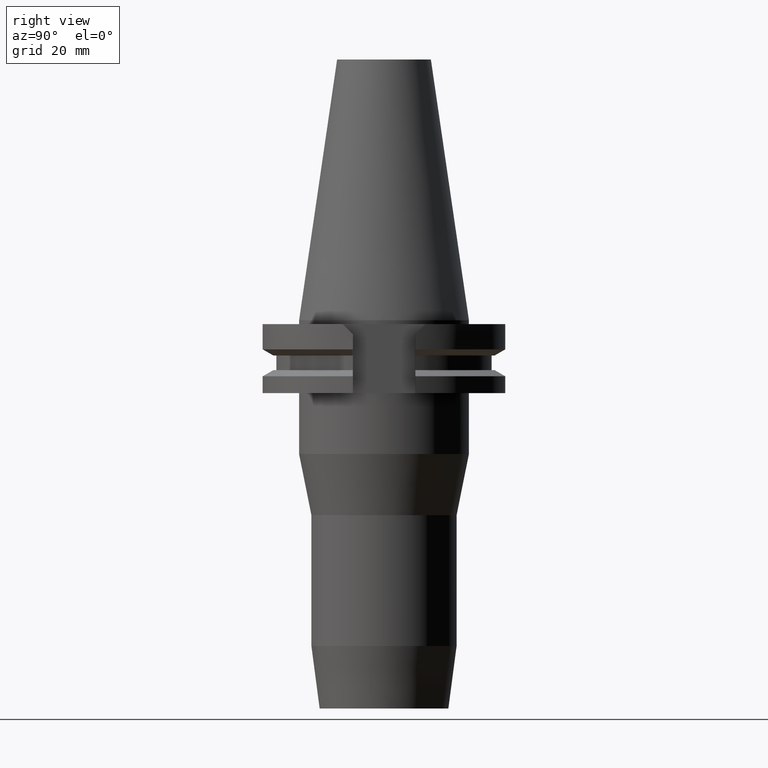
[diagram: clean part render]
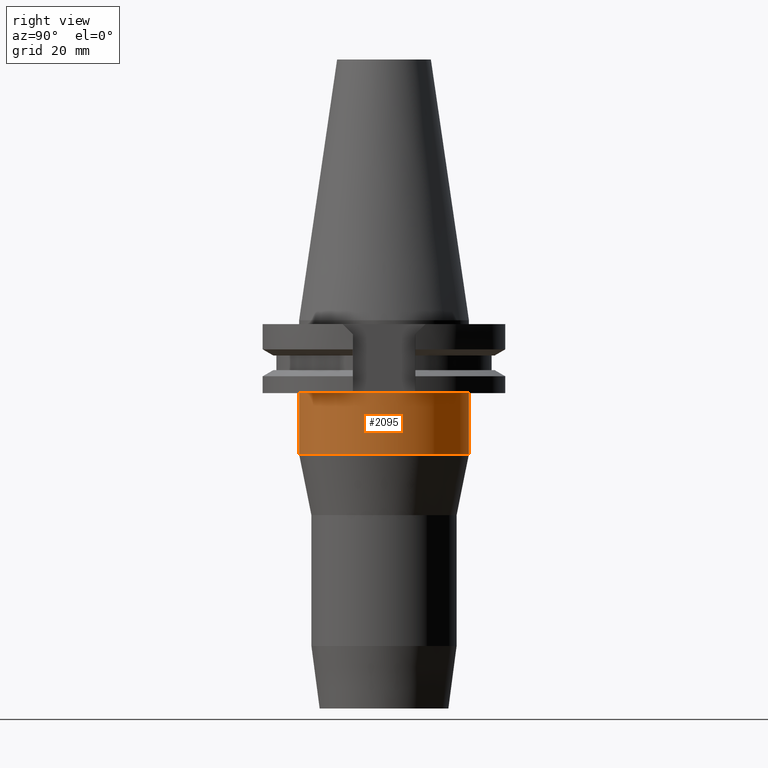
[diagram: same view with one face highlighted and labeled with its STEP entity id]
A machine part, right view. The second image highlights one B-rep face of the part: STEP entity #2095.
In plain terms, the highlighted cylindrical surface (partial cylindrical patch) has radius 22.225 mm, axis along (0, 0, -1).
Its self-contained STEP definition (entity closure, byte-faithful):
#259=CARTESIAN_POINT('',(0.E0,2.164471368983E-14,-1.905E1));
#260=DIRECTION('',(0.E0,0.E0,-1.E0));
#261=DIRECTION('',(0.E0,1.E0,0.E0));
#262=AXIS2_PLACEMENT_3D('',#259,#260,#261);
#848=DIRECTION('',(0.E0,0.E0,-1.E0));
#849=VECTOR('',#848,1.595E1);
#850=CARTESIAN_POINT('',(0.E0,-2.2225E1,-1.905E1));
#851=LINE('',#850,#849);
#855=DIRECTION('',(0.E0,0.E0,-1.E0));
#856=VECTOR('',#855,1.595E1);
#857=CARTESIAN_POINT('',(0.E0,2.2225E1,-1.905E1));
#858=LINE('',#857,#856);
#877=CARTESIAN_POINT('',(0.E0,0.E0,-3.5E1));
#878=DIRECTION('',(0.E0,0.E0,1.E0));
#879=DIRECTION('',(0.E0,-1.E0,0.E0));
#880=AXIS2_PLACEMENT_3D('',#877,#878,#879);
#1326=CARTESIAN_POINT('',(0.E0,2.2225E1,-3.5E1));
#1327=VERTEX_POINT('',#1326);
#1328=CARTESIAN_POINT('',(0.E0,-2.2225E1,-3.5E1));
#1329=VERTEX_POINT('',#1328);
#1330=CARTESIAN_POINT('',(0.E0,2.2225E1,-1.905E1));
#1331=VERTEX_POINT('',#1330);
#1332=CARTESIAN_POINT('',(0.E0,-2.2225E1,-1.905E1));
#1333=VERTEX_POINT('',#1332);
#2083=CARTESIAN_POINT('',(0.E0,2.164471368983E-14,7.67425E1));
#2084=DIRECTION('',(0.E0,0.E0,-1.E0));
#2085=DIRECTION('',(0.E0,-1.E0,0.E0));
#2086=AXIS2_PLACEMENT_3D('',#2083,#2084,#2085);
#2087=CYLINDRICAL_SURFACE('',#2086,2.2225E1);
#2088=ORIENTED_EDGE('',*,*,#2073,.T.);
#2090=ORIENTED_EDGE('',*,*,#2089,.F.);
#2091=ORIENTED_EDGE('',*,*,#2076,.F.);
#2092=ORIENTED_EDGE('',*,*,#1621,.F.);
#2093=EDGE_LOOP('',(#2088,#2090,#2091,#2092));
#2094=FACE_OUTER_BOUND('',#2093,.F.);
#263=CIRCLE('',#262,2.2225E1);
#881=CIRCLE('',#880,2.2225E1);
#1621=EDGE_CURVE('',#1331,#1333,#263,.T.);
#2073=EDGE_CURVE('',#1331,#1327,#858,.T.);
#2076=EDGE_CURVE('',#1333,#1329,#851,.T.);
#2089=EDGE_CURVE('',#1329,#1327,#881,.T.);
#2095=ADVANCED_FACE('',(#2094),#2087,.T.);